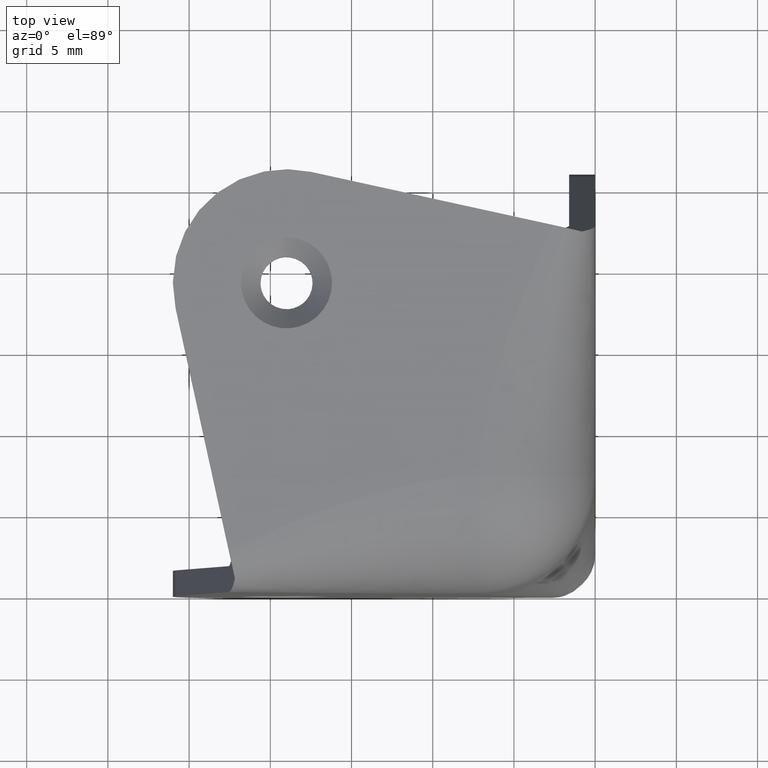
[diagram: clean part render]
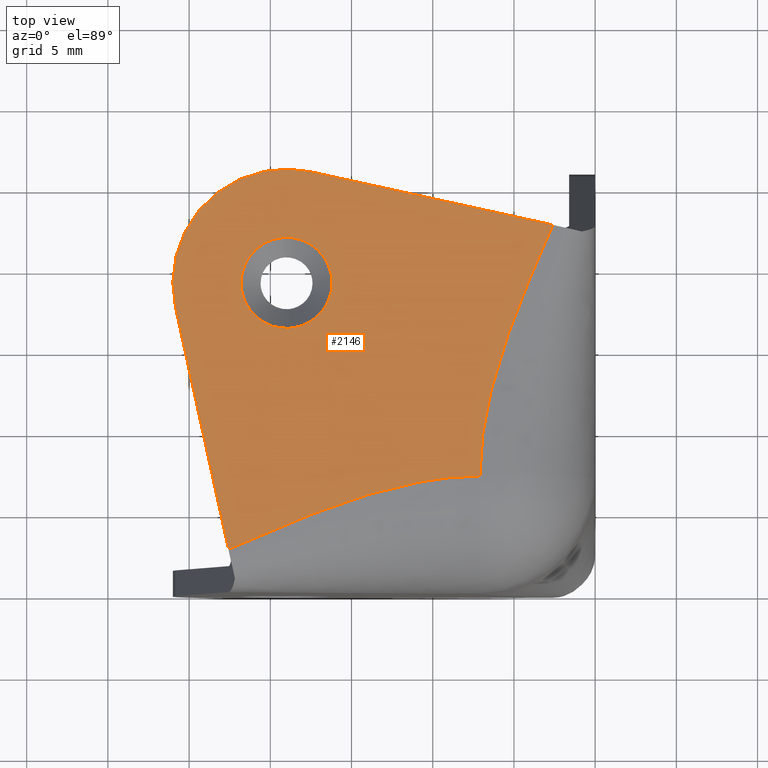
[diagram: same view with one face highlighted and labeled with its STEP entity id]
A machine part, top view. The second image highlights one B-rep face of the part: STEP entity #2146.
In plain terms, the highlighted face is a freeform B-spline surface patch.
Its self-contained STEP definition (entity closure, byte-faithful):
#264=CARTESIAN_POINT('',(-19.219685468158300,21.791368534459000,26.000000000015660));
#265=VERTEX_POINT('',#264);
#271=CARTESIAN_POINT('',(-21.800000000000001,19.0,26.0));
#272=VERTEX_POINT('',#271);
#273=CARTESIAN_POINT('',(-21.800000000000001,19.0,26.0));
#274=CARTESIAN_POINT('',(-21.800000000000004,21.588293376421433,26.000000000000011));
#275=CARTESIAN_POINT('',(-19.219685468158293,21.791368534459007,26.000000000015667));
#283=(BOUNDED_CURVE()B_SPLINE_CURVE(2,(#273,#274,#275),.UNSPECIFIED.,.F.,.U.)B_SPLINE_CURVE_WITH_KNOTS((3,3),(0.0,0.236331300618138),.UNSPECIFIED.)CURVE()GEOMETRIC_REPRESENTATION_ITEM()RATIONAL_B_SPLINE_CURVE((1.0,0.723120658622335,0.969723356141287))REPRESENTATION_ITEM(''));
#284=EDGE_CURVE('',#272,#265,#283,.T.);
#286=CARTESIAN_POINT('',(-18.780314531841700,16.208631465541000,26.000000000015660));
#287=VERTEX_POINT('',#286);
#288=CARTESIAN_POINT('',(-18.780314531841704,16.208631465541000,26.000000000015660));
#289=CARTESIAN_POINT('',(-18.889987700258875,16.200000000000003,26.0));
#290=CARTESIAN_POINT('',(-19.0,16.199999999999999,26.0));
#291=CARTESIAN_POINT('',(-21.800000000000008,16.200000000000003,26.000000000000007));
#292=CARTESIAN_POINT('',(-21.800000000000001,19.0,26.0));
#300=(BOUNDED_CURVE()B_SPLINE_CURVE(2,(#288,#289,#290,#291,#292),.UNSPECIFIED.,.F.,.U.)B_SPLINE_CURVE_WITH_KNOTS((3,2,3),(0.736331300618138,0.750000000000000,1.0),.UNSPECIFIED.)CURVE()GEOMETRIC_REPRESENTATION_ITEM()RATIONAL_B_SPLINE_CURVE((0.969723356141287,0.983986122564212,1.0,0.707106781186547,1.0))REPRESENTATION_ITEM(''));
#301=EDGE_CURVE('',#287,#272,#300,.T.);
#338=CARTESIAN_POINT('',(-16.199999999999999,19.0,26.0));
#339=VERTEX_POINT('',#338);
#340=CARTESIAN_POINT('',(-16.199999999999999,19.0,26.0));
#341=CARTESIAN_POINT('',(-16.200000000000003,16.411706623578588,26.0));
#342=CARTESIAN_POINT('',(-18.780314531841707,16.208631465540996,26.000000000015667));
#350=(BOUNDED_CURVE()B_SPLINE_CURVE(2,(#340,#341,#342),.UNSPECIFIED.,.F.,.U.)B_SPLINE_CURVE_WITH_KNOTS((3,3),(0.500000000000000,0.736331300618138),.UNSPECIFIED.)CURVE()GEOMETRIC_REPRESENTATION_ITEM()RATIONAL_B_SPLINE_CURVE((1.0,0.723120658622336,0.969723356141286))REPRESENTATION_ITEM(''));
#351=EDGE_CURVE('',#339,#287,#350,.T.);
#353=CARTESIAN_POINT('',(-19.219685468158293,21.791368534459007,26.000000000015667));
#354=CARTESIAN_POINT('',(-19.110012299741125,21.800000000000001,25.999999999999996));
#355=CARTESIAN_POINT('',(-19.0,21.800000000000001,26.0));
#356=CARTESIAN_POINT('',(-16.200000000000003,21.800000000000008,26.000000000000007));
#357=CARTESIAN_POINT('',(-16.199999999999999,19.0,26.0));
#365=(BOUNDED_CURVE()B_SPLINE_CURVE(2,(#353,#354,#355,#356,#357),.UNSPECIFIED.,.F.,.U.)B_SPLINE_CURVE_WITH_KNOTS((3,2,3),(0.236331300618138,0.250000000000000,0.500000000000000),.UNSPECIFIED.)CURVE()GEOMETRIC_REPRESENTATION_ITEM()RATIONAL_B_SPLINE_CURVE((0.969723356141287,0.983986122564212,1.0,0.707106781186547,1.0))REPRESENTATION_ITEM(''));
#366=EDGE_CURVE('',#265,#339,#365,.T.);
#1059=CARTESIAN_POINT('',(-7.100000000000001,7.100000000000001,26.0));
#1060=VERTEX_POINT('',#1059);
#1074=CARTESIAN_POINT('',(-22.570127822573451,2.600000000000000,26.0));
#1075=VERTEX_POINT('',#1074);
#1076=CARTESIAN_POINT('',(-22.570127822573451,2.600000000000000,26.0));
#1077=CARTESIAN_POINT('',(-17.413418548382300,4.850000000000001,26.0));
#1078=CARTESIAN_POINT('',(-12.256709274191140,7.100000000000001,26.0));
#1079=CARTESIAN_POINT('',(-7.100000000000001,7.100000000000001,26.0));
#1080=B_SPLINE_CURVE_WITH_KNOTS('',3,(#1076,#1077,#1078,#1079),.UNSPECIFIED.,.F.,.U.,(4,4),(0.278074866310160,1.0),.UNSPECIFIED.);
#1081=EDGE_CURVE('',#1075,#1060,#1080,.T.);
#1311=CARTESIAN_POINT('',(-2.600000000000000,22.570127822573451,26.0));
#1312=VERTEX_POINT('',#1311);
#1332=CARTESIAN_POINT('',(-7.100000000000001,7.100000000000001,26.0));
#1333=CARTESIAN_POINT('',(-7.100000000000001,12.256709274191159,26.0));
#1334=CARTESIAN_POINT('',(-4.850000000000001,17.413418548382349,26.0));
#1335=CARTESIAN_POINT('',(-2.600000000000000,22.570127822573500,26.0));
#1336=B_SPLINE_CURVE_WITH_KNOTS('',3,(#1332,#1333,#1334,#1335),.UNSPECIFIED.,.F.,.U.,(4,4),(0.278074866310159,1.000000000000000),.UNSPECIFIED.);
#1337=EDGE_CURVE('',#1060,#1312,#1336,.T.);
#1699=CARTESIAN_POINT('',(-17.500664717419600,25.837542958578751,26.0));
#1700=VERTEX_POINT('',#1699);
#1701=CARTESIAN_POINT('',(-17.500664717419600,25.837542958578751,26.0));
#1702=CARTESIAN_POINT('',(-2.600000000000000,22.570127822573451,26.0));
#1703=QUASI_UNIFORM_CURVE('',1,(#1701,#1702),.UNSPECIFIED.,.F.,.U.);
#1704=EDGE_CURVE('',#1700,#1312,#1703,.T.);
#1742=CARTESIAN_POINT('',(-25.837542958578751,17.500664717419600,26.0));
#1743=VERTEX_POINT('',#1742);
#1744=CARTESIAN_POINT('',(-25.837542958578730,17.500664717419600,26.0));
#1745=CARTESIAN_POINT('',(-26.657861874843871,21.241633061767811,26.0));
#1746=CARTESIAN_POINT('',(-23.949747468305830,23.949747468305841,26.0));
#1747=CARTESIAN_POINT('',(-21.241633061767800,26.657861874843871,26.0));
#1748=CARTESIAN_POINT('',(-17.500664717419600,25.837542958578730,26.0));
#1756=(BOUNDED_CURVE()B_SPLINE_CURVE(2,(#1744,#1745,#1746,#1747,#1748),.UNSPECIFIED.,.F.,.U.)B_SPLINE_CURVE_WITH_KNOTS((3,2,3),(0.0,0.500000000000000,1.0),.UNSPECIFIED.)CURVE()GEOMETRIC_REPRESENTATION_ITEM()RATIONAL_B_SPLINE_CURVE((1.0,0.877280002828568,1.0,0.877280002828568,1.0))REPRESENTATION_ITEM(''));
#1757=EDGE_CURVE('',#1743,#1700,#1756,.T.);
#1796=CARTESIAN_POINT('',(-22.570127822573451,2.600000000000000,26.0));
#1797=CARTESIAN_POINT('',(-25.837542958578751,17.500664717419600,26.0));
#1798=QUASI_UNIFORM_CURVE('',1,(#1796,#1797),.UNSPECIFIED.,.F.,.U.);
#1799=EDGE_CURVE('',#1075,#1743,#1798,.T.);
#2128=CARTESIAN_POINT('',(-27.167934893465759,1.431212432153859,26.0));
#2129=CARTESIAN_POINT('',(-1.431211999104837,1.431212432153859,26.0));
#2130=CARTESIAN_POINT('',(-27.167934893465759,27.167935004148941,26.0));
#2131=CARTESIAN_POINT('',(-1.431211999104837,27.167935004148941,26.0));
#2132=B_SPLINE_SURFACE_WITH_KNOTS('',1,1,((#2128,#2130),(#2129,#2131)),.UNSPECIFIED.,.F.,.F.,.U.,(2,2),(2,2),(0.0,25.736722894360920),(0.0,25.736722571995081),.UNSPECIFIED.);
#2133=ORIENTED_EDGE('',*,*,#1799,.F.);
#2134=ORIENTED_EDGE('',*,*,#1081,.T.);
#2135=ORIENTED_EDGE('',*,*,#1337,.T.);
#2136=ORIENTED_EDGE('',*,*,#1704,.F.);
#2137=ORIENTED_EDGE('',*,*,#1757,.F.);
#2138=EDGE_LOOP('',(#2133,#2134,#2135,#2136,#2137));
#2139=FACE_OUTER_BOUND('',#2138,.T.);
#2140=ORIENTED_EDGE('',*,*,#351,.T.);
#2141=ORIENTED_EDGE('',*,*,#301,.T.);
#2142=ORIENTED_EDGE('',*,*,#284,.T.);
#2143=ORIENTED_EDGE('',*,*,#366,.T.);
#2144=EDGE_LOOP('',(#2140,#2141,#2142,#2143));
#2145=FACE_BOUND('',#2144,.T.);
#2146=ADVANCED_FACE('',(#2139,#2145),#2132,.T.);